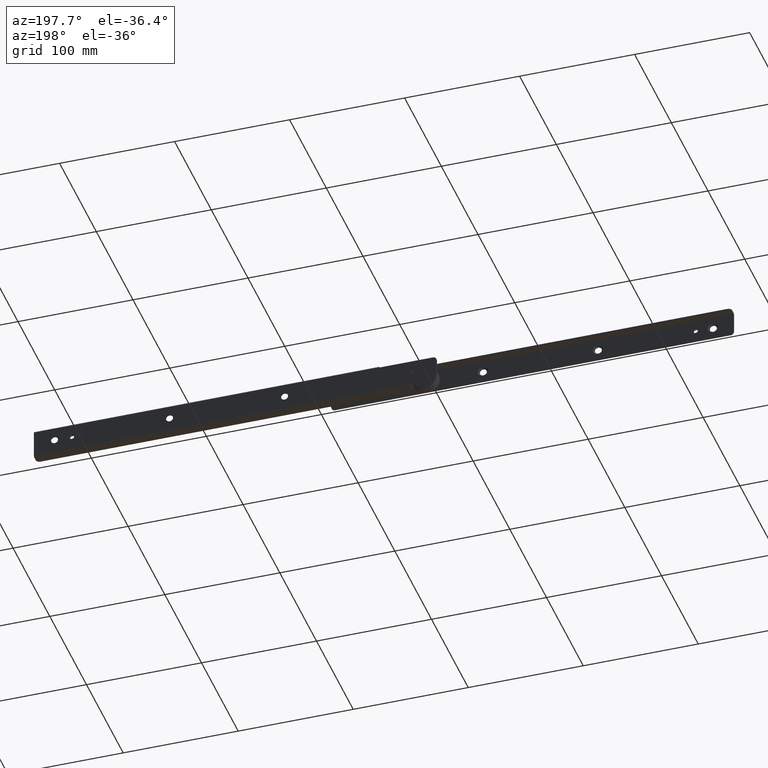
[diagram: clean part render]
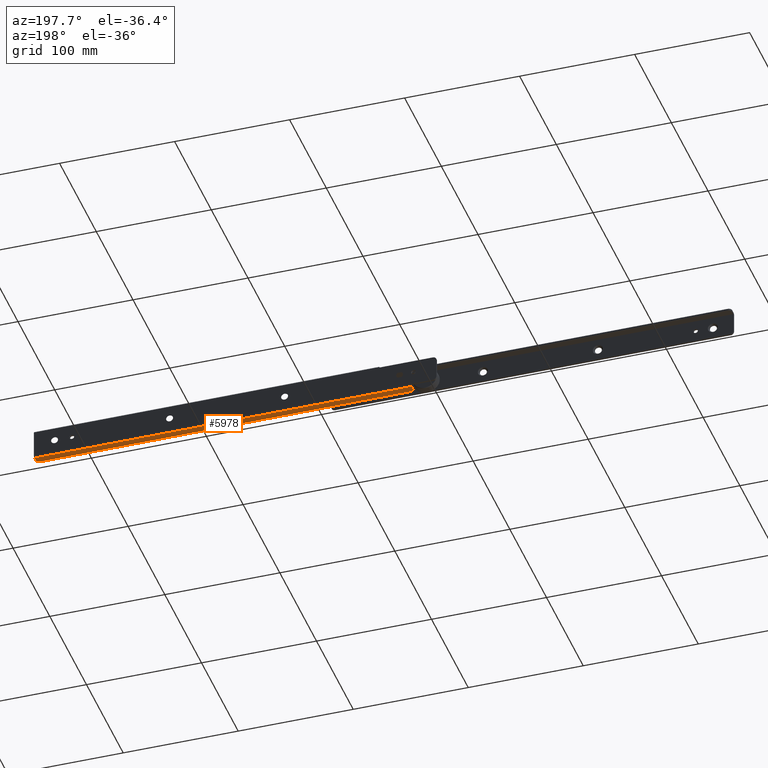
[diagram: same view with one face highlighted and labeled with its STEP entity id]
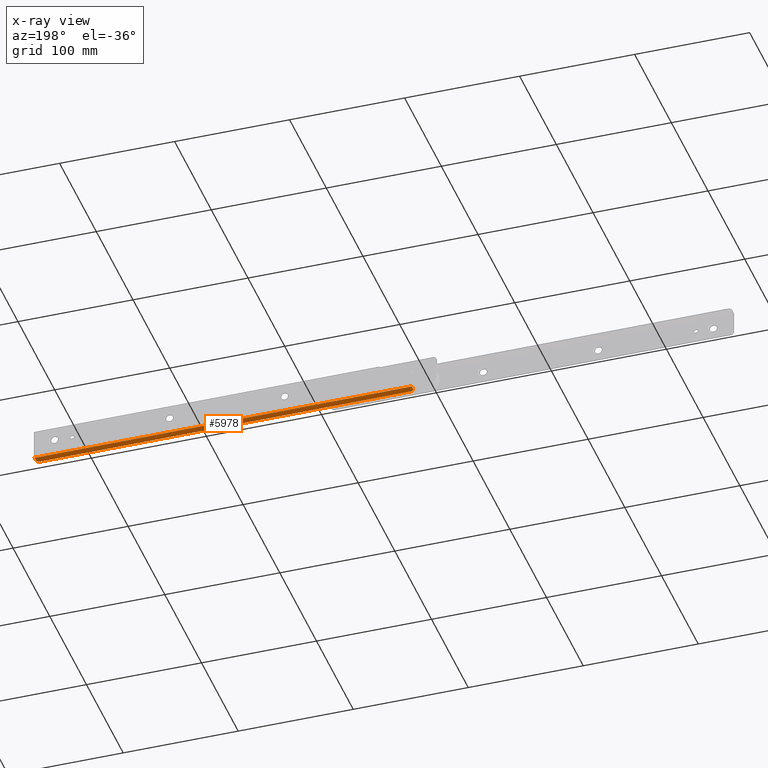
[diagram: x-ray of the same camera — body ghosted, the highlighted face saturated]
A machine part, auxiliary view. The second image highlights one B-rep face of the part: STEP entity #5978.
The next image is the same camera in x-ray: the body ghosted, the highlighted face saturated — about 0% of this face is hidden behind the body in this view.
In plain terms, the highlighted face is a freeform B-spline surface patch.
Its self-contained STEP definition (entity closure, byte-faithful):
#5345=CARTESIAN_POINT('',(22.0,-5.0,-20.199999999999999));
#5346=VERTEX_POINT('',#5345);
#5352=CARTESIAN_POINT('',(25.0,-8.0,-20.199999999999999));
#5353=VERTEX_POINT('',#5352);
#5354=CARTESIAN_POINT('',(25.0,-8.0,-20.199999999999999));
#5355=CARTESIAN_POINT('',(22.000000000000007,-8.0,-20.199999999999999));
#5356=CARTESIAN_POINT('',(22.0,-5.0,-20.199999999999999));
#5364=(BOUNDED_CURVE()B_SPLINE_CURVE(2,(#5354,#5355,#5356),.UNSPECIFIED.,.F.,.U.)CURVE()GEOMETRIC_REPRESENTATION_ITEM()QUASI_UNIFORM_CURVE()RATIONAL_B_SPLINE_CURVE((1.0,0.707106781186548,1.0))REPRESENTATION_ITEM(''));
#5365=EDGE_CURVE('',#5353,#5346,#5364,.T.);
#5406=CARTESIAN_POINT('',(347.0,-8.0,-20.199999999999999));
#5407=VERTEX_POINT('',#5406);
#5413=CARTESIAN_POINT('',(350.0,-5.0,-20.199999999999999));
#5414=VERTEX_POINT('',#5413);
#5415=CARTESIAN_POINT('',(350.0,-5.0,-20.199999999999999));
#5416=CARTESIAN_POINT('',(349.999999999999890,-8.0,-20.199999999999999));
#5417=CARTESIAN_POINT('',(347.0,-8.0,-20.199999999999999));
#5425=(BOUNDED_CURVE()B_SPLINE_CURVE(2,(#5415,#5416,#5417),.UNSPECIFIED.,.F.,.U.)CURVE()GEOMETRIC_REPRESENTATION_ITEM()QUASI_UNIFORM_CURVE()RATIONAL_B_SPLINE_CURVE((1.0,0.707106781186548,1.0))REPRESENTATION_ITEM(''));
#5426=EDGE_CURVE('',#5414,#5407,#5425,.T.);
#5717=CARTESIAN_POINT('',(22.0,-1.599999999999910,-20.199999999999999));
#5718=VERTEX_POINT('',#5717);
#5719=CARTESIAN_POINT('',(22.0,-1.599999999999910,-20.199999999999999));
#5720=CARTESIAN_POINT('',(22.0,-5.0,-20.199999999999999));
#5721=QUASI_UNIFORM_CURVE('',1,(#5719,#5720),.UNSPECIFIED.,.F.,.U.);
#5722=EDGE_CURVE('',#5718,#5346,#5721,.T.);
#5800=CARTESIAN_POINT('',(350.0,-1.599999999999910,-20.199999999999999));
#5801=VERTEX_POINT('',#5800);
#5802=CARTESIAN_POINT('',(350.0,-5.0,-20.199999999999999));
#5803=CARTESIAN_POINT('',(350.0,-1.599999999999910,-20.199999999999999));
#5804=QUASI_UNIFORM_CURVE('',1,(#5802,#5803),.UNSPECIFIED.,.F.,.U.);
#5805=EDGE_CURVE('',#5414,#5801,#5804,.T.);
#5950=CARTESIAN_POINT('',(350.0,-1.599999999999910,-20.199999999999999));
#5951=CARTESIAN_POINT('',(22.0,-1.599999999999910,-20.199999999999999));
#5952=QUASI_UNIFORM_CURVE('',1,(#5950,#5951),.UNSPECIFIED.,.F.,.U.);
#5953=EDGE_CURVE('',#5801,#5718,#5952,.T.);
#5961=CARTESIAN_POINT('',(5.616400635727654,-8.319679987595562,-20.199999999999999));
#5962=CARTESIAN_POINT('',(366.383608161917890,-8.319679987595562,-20.199999999999999));
#5963=CARTESIAN_POINT('',(5.616400635727654,-1.280319840742971,-20.199999999999999));
#5964=CARTESIAN_POINT('',(366.383608161917890,-1.280319840742971,-20.199999999999999));
#5965=B_SPLINE_SURFACE_WITH_KNOTS('',1,1,((#5961,#5963),(#5962,#5964)),.UNSPECIFIED.,.F.,.F.,.U.,(2,2),(2,2),(0.0,360.767207526190300),(0.0,7.039360146852591),.UNSPECIFIED.);
#5966=ORIENTED_EDGE('',*,*,#5805,.F.);
#5967=ORIENTED_EDGE('',*,*,#5426,.T.);
#5968=CARTESIAN_POINT('',(347.0,-8.0,-20.199999999999999));
#5969=CARTESIAN_POINT('',(25.0,-8.0,-20.199999999999999));
#5970=QUASI_UNIFORM_CURVE('',1,(#5968,#5969),.UNSPECIFIED.,.F.,.U.);
#5971=EDGE_CURVE('',#5407,#5353,#5970,.T.);
#5972=ORIENTED_EDGE('',*,*,#5971,.T.);
#5973=ORIENTED_EDGE('',*,*,#5365,.T.);
#5974=ORIENTED_EDGE('',*,*,#5722,.F.);
#5975=ORIENTED_EDGE('',*,*,#5953,.F.);
#5976=EDGE_LOOP('',(#5966,#5967,#5972,#5973,#5974,#5975));
#5977=FACE_OUTER_BOUND('',#5976,.T.);
#5978=ADVANCED_FACE('',(#5977),#5965,.F.);